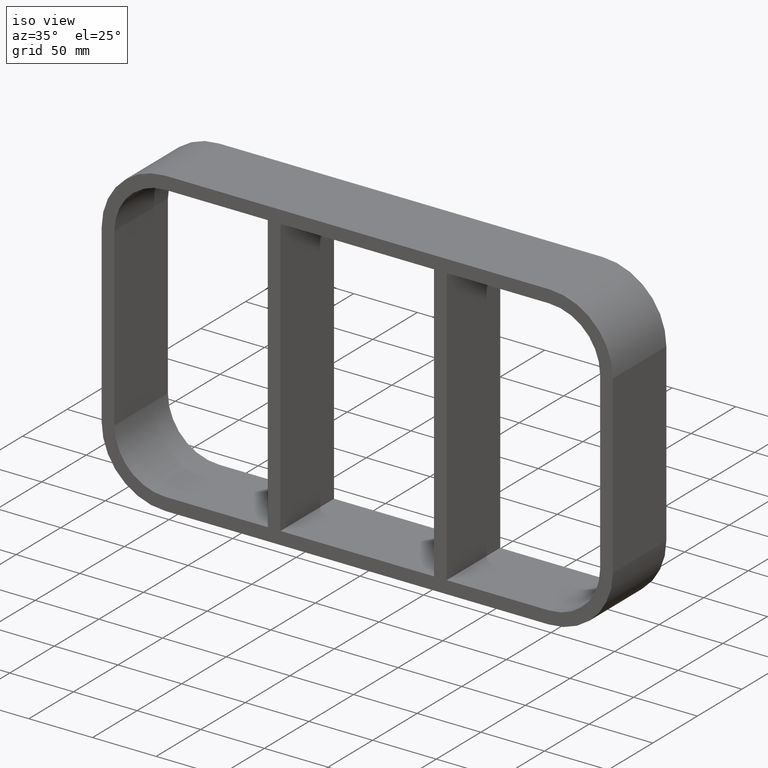
[diagram: clean part render]
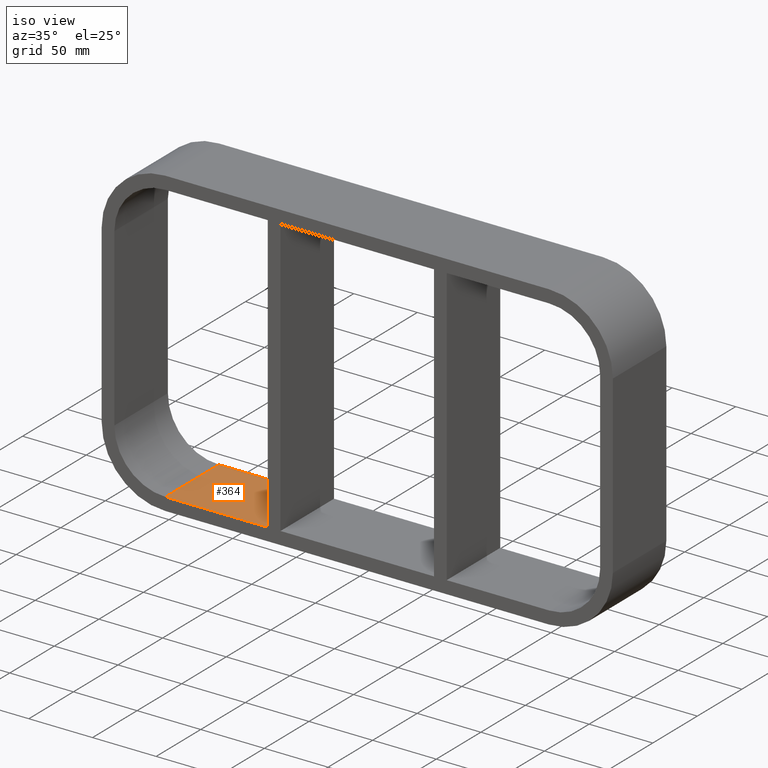
[diagram: same view with one face highlighted and labeled with its STEP entity id]
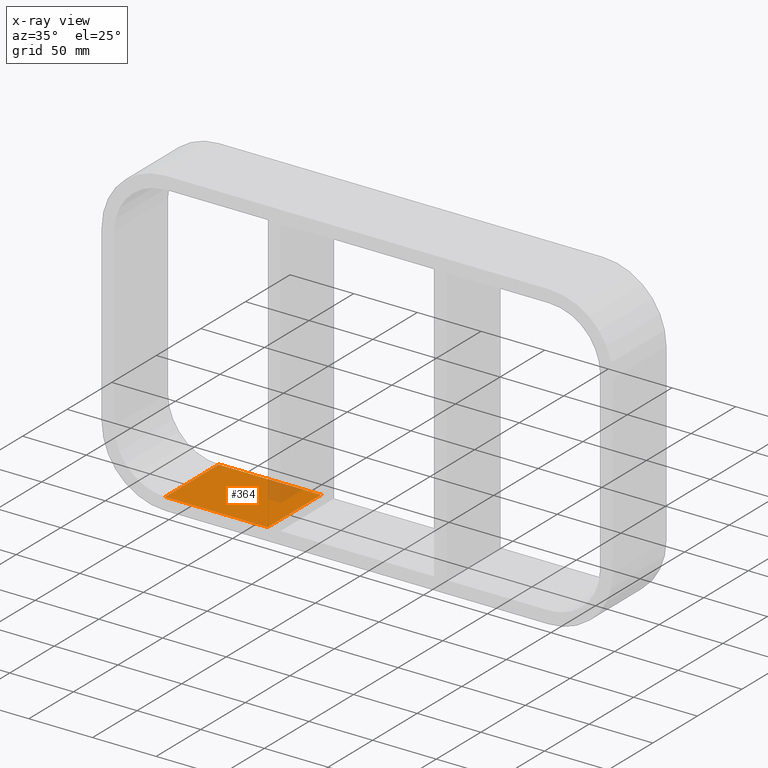
[diagram: x-ray of the same camera — body ghosted, the highlighted face saturated]
A machine part, iso view. The second image highlights one B-rep face of the part: STEP entity #364.
The next image is the same camera in x-ray: the body ghosted, the highlighted face saturated — about 10% of this face is hidden behind the body in this view.
In plain terms, the highlighted planar face has unit normal (0, 0, -1).
Its self-contained STEP definition (entity closure, byte-faithful):
#277=CARTESIAN_POINT('',(-70.250000000001478,-3.0,-108.99999999999999));
#278=VERTEX_POINT('',#277);
#295=CARTESIAN_POINT('',(-70.250000000001478,57.0,-108.99999999999999));
#296=VERTEX_POINT('',#295);
#303=CARTESIAN_POINT('',(-70.250000000001478,-3.0,-108.99999999999999));
#304=DIRECTION('',(0.0,1.0,0.0));
#305=VECTOR('',#304,60.000000000000007);
#306=LINE('',#303,#305);
#307=EDGE_CURVE('',#278,#296,#306,.T.);
#334=CARTESIAN_POINT('',(190.75000000000006,0.0,-108.99999999999999));
#335=DIRECTION('',(0.0,0.0,-1.0));
#336=DIRECTION('',(-1.0,0.0,0.0));
#337=AXIS2_PLACEMENT_3D('',#334,#335,#336);
#338=PLANE('',#337);
#339=ORIENTED_EDGE('',*,*,#307,.T.);
#340=CARTESIAN_POINT('',(-150.75,57.0,-108.99999999999999));
#341=VERTEX_POINT('',#340);
#342=CARTESIAN_POINT('',(-150.75000000000003,57.0,-108.99999999999999));
#343=DIRECTION('',(1.0,0.0,0.0));
#344=VECTOR('',#343,80.499999999998579);
#345=LINE('',#342,#344);
#346=EDGE_CURVE('',#341,#296,#345,.T.);
#347=ORIENTED_EDGE('',*,*,#346,.F.);
#348=CARTESIAN_POINT('',(-150.75,-3.0,-108.99999999999999));
#349=VERTEX_POINT('',#348);
#350=CARTESIAN_POINT('',(-150.75,-3.0,-108.99999999999999));
#351=DIRECTION('',(0.0,1.0,0.0));
#352=VECTOR('',#351,60.0);
#353=LINE('',#350,#352);
#354=EDGE_CURVE('',#349,#341,#353,.T.);
#355=ORIENTED_EDGE('',*,*,#354,.F.);
#356=CARTESIAN_POINT('',(-70.25000000000145,-3.0,-108.99999999999999));
#357=DIRECTION('',(-1.0,0.0,0.0));
#358=VECTOR('',#357,80.499999999998579);
#359=LINE('',#356,#358);
#360=EDGE_CURVE('',#278,#349,#359,.T.);
#361=ORIENTED_EDGE('',*,*,#360,.F.);
#362=EDGE_LOOP('',(#339,#347,#355,#361));
#363=FACE_OUTER_BOUND('',#362,.T.);
#364=ADVANCED_FACE('',(#363),#338,.F.);